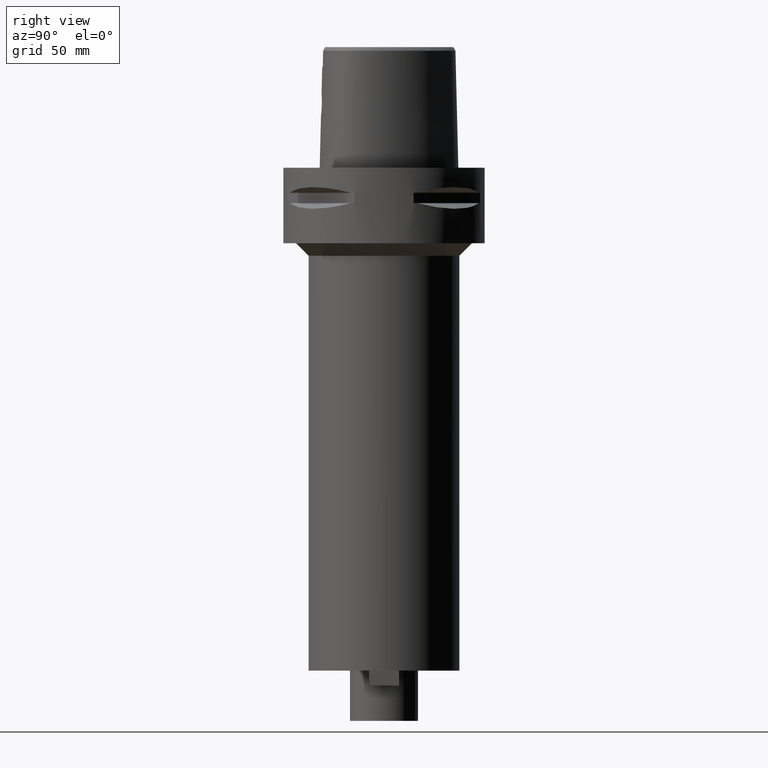
[diagram: clean part render]
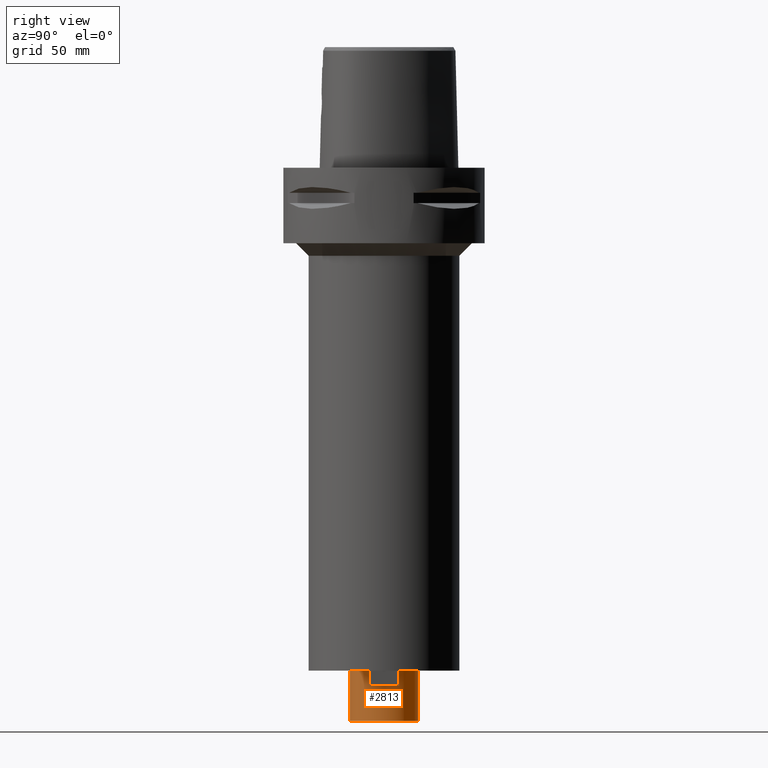
[diagram: same view with one face highlighted and labeled with its STEP entity id]
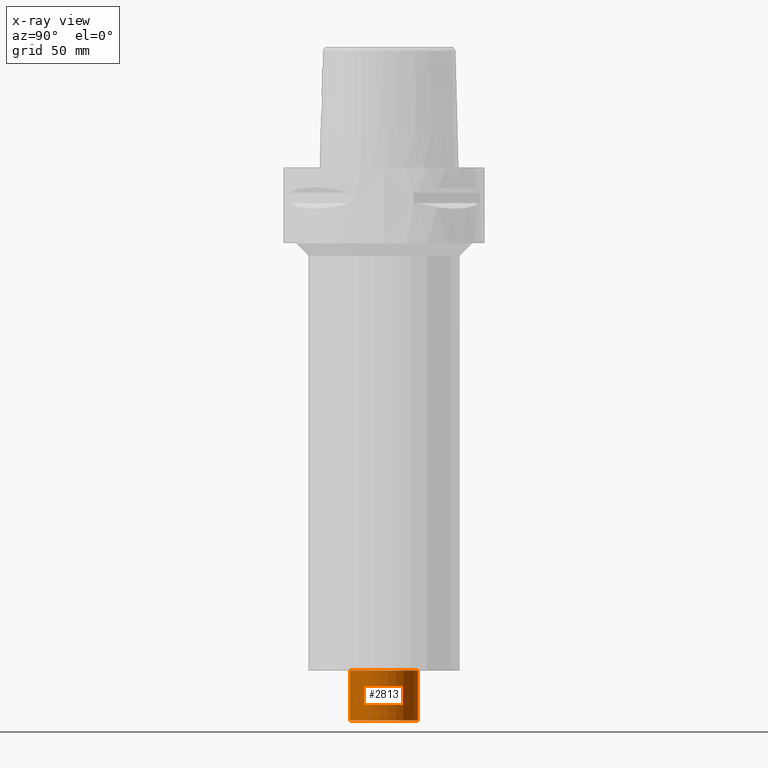
[diagram: x-ray of the same camera — body ghosted, the highlighted face saturated]
A machine part, right view. The second image highlights one B-rep face of the part: STEP entity #2813.
The next image is the same camera in x-ray: the body ghosted, the highlighted face saturated — about 0% of this face is hidden behind the body in this view.
In plain terms, the highlighted cylindrical surface (edge-blend (fillet) strip) has radius 13.5 mm, axis along (0, 0, -1).
Its self-contained STEP definition (entity closure, byte-faithful):
#577=CARTESIAN_POINT('',(0.E0,1.359357947054E-14,-2.E2));
#578=DIRECTION('',(0.E0,0.E0,-1.E0));
#579=DIRECTION('',(0.E0,1.E0,0.E0));
#580=AXIS2_PLACEMENT_3D('',#577,#578,#579);
#613=DIRECTION('',(0.E0,0.E0,-1.E0));
#614=VECTOR('',#613,2.E1);
#615=CARTESIAN_POINT('',(0.E0,-1.35E1,-2.E2));
#616=LINE('',#615,#614);
#620=DIRECTION('',(0.E0,0.E0,-1.E0));
#621=VECTOR('',#620,2.E1);
#622=CARTESIAN_POINT('',(0.E0,1.35E1,-2.E2));
#623=LINE('',#622,#621);
#627=CARTESIAN_POINT('',(0.E0,1.359357947054E-14,-2.2E2));
#628=DIRECTION('',(0.E0,0.E0,1.E0));
#629=DIRECTION('',(0.E0,-1.E0,0.E0));
#630=AXIS2_PLACEMENT_3D('',#627,#628,#629);
#1720=CARTESIAN_POINT('',(0.E0,-1.35E1,-2.E2));
#1721=CARTESIAN_POINT('',(0.E0,1.35E1,-2.E2));
#1722=VERTEX_POINT('',#1720);
#1723=VERTEX_POINT('',#1721);
#1740=CARTESIAN_POINT('',(0.E0,1.35E1,-2.2E2));
#1741=VERTEX_POINT('',#1740);
#1742=CARTESIAN_POINT('',(0.E0,-1.35E1,-2.2E2));
#1743=VERTEX_POINT('',#1742);
#2801=CARTESIAN_POINT('',(0.E0,1.359357947054E-14,1.1E1));
#2802=DIRECTION('',(0.E0,0.E0,-1.E0));
#2803=DIRECTION('',(0.E0,-1.E0,0.E0));
#2804=AXIS2_PLACEMENT_3D('',#2801,#2802,#2803);
#2805=CYLINDRICAL_SURFACE('',#2804,1.35E1);
#2806=ORIENTED_EDGE('',*,*,#2791,.T.);
#2808=ORIENTED_EDGE('',*,*,#2807,.F.);
#2809=ORIENTED_EDGE('',*,*,#2794,.F.);
#2810=ORIENTED_EDGE('',*,*,#2761,.F.);
#2811=EDGE_LOOP('',(#2806,#2808,#2809,#2810));
#2812=FACE_OUTER_BOUND('',#2811,.F.);
#581=CIRCLE('',#580,1.35E1);
#631=CIRCLE('',#630,1.35E1);
#2761=EDGE_CURVE('',#1723,#1722,#581,.T.);
#2791=EDGE_CURVE('',#1723,#1741,#623,.T.);
#2794=EDGE_CURVE('',#1722,#1743,#616,.T.);
#2807=EDGE_CURVE('',#1743,#1741,#631,.T.);
#2813=ADVANCED_FACE('',(#2812),#2805,.T.);